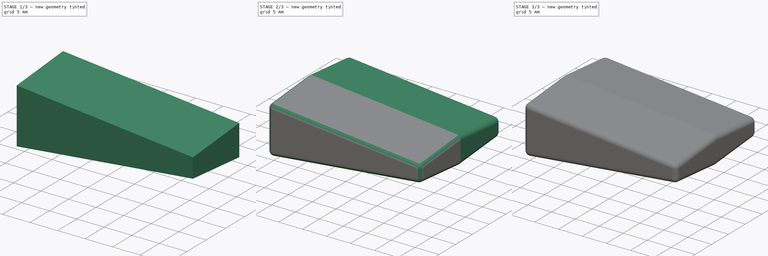
[diagram: build sequence overview — one tinted view per stage of 3, left to right]
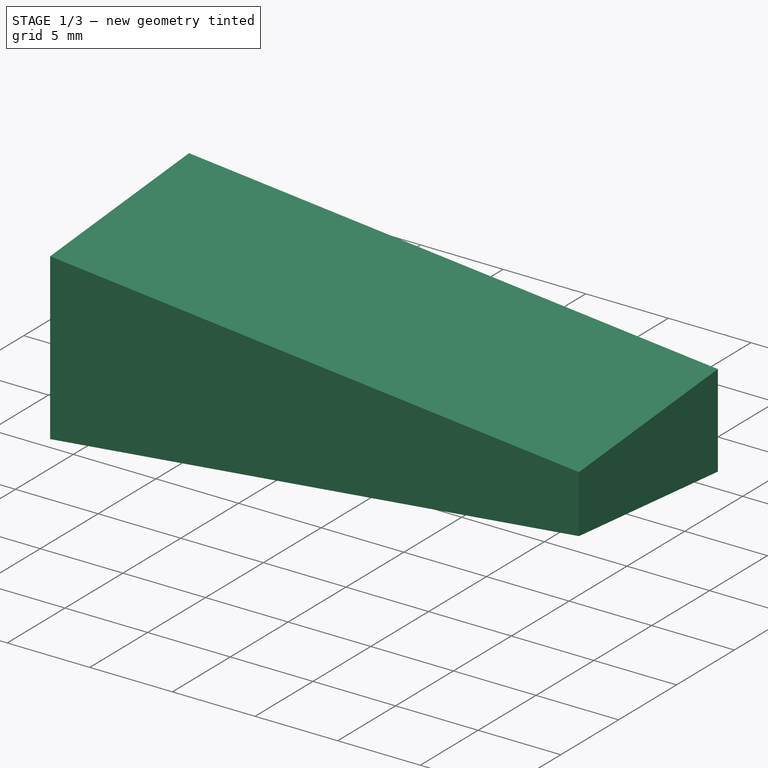
[diagram: stage 1 of 3 — iso view after this stage's code; geometry added in this stage tinted green]
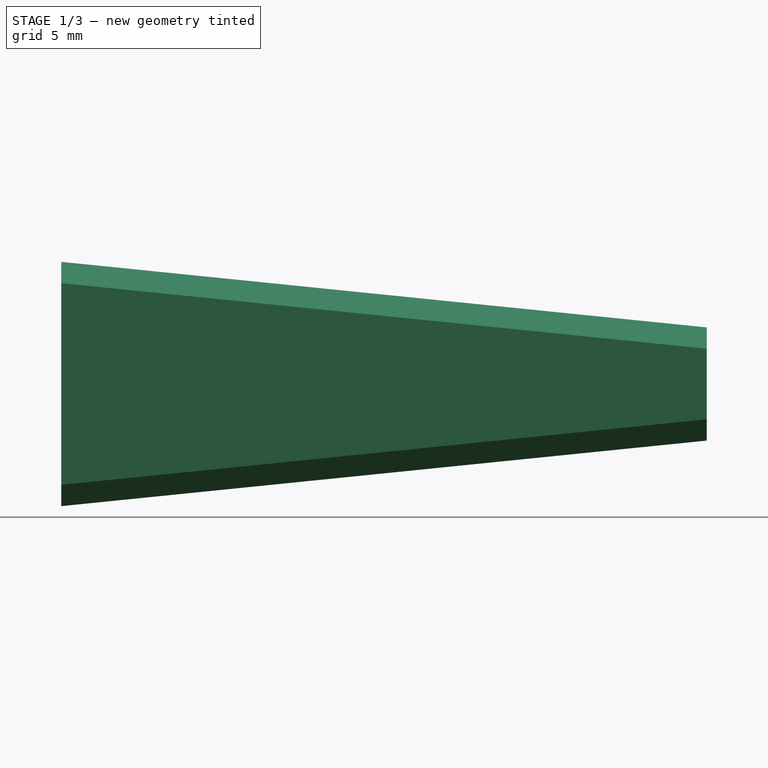
[diagram: stage 1 of 3 — front view after this stage's code; geometry added in this stage tinted green]
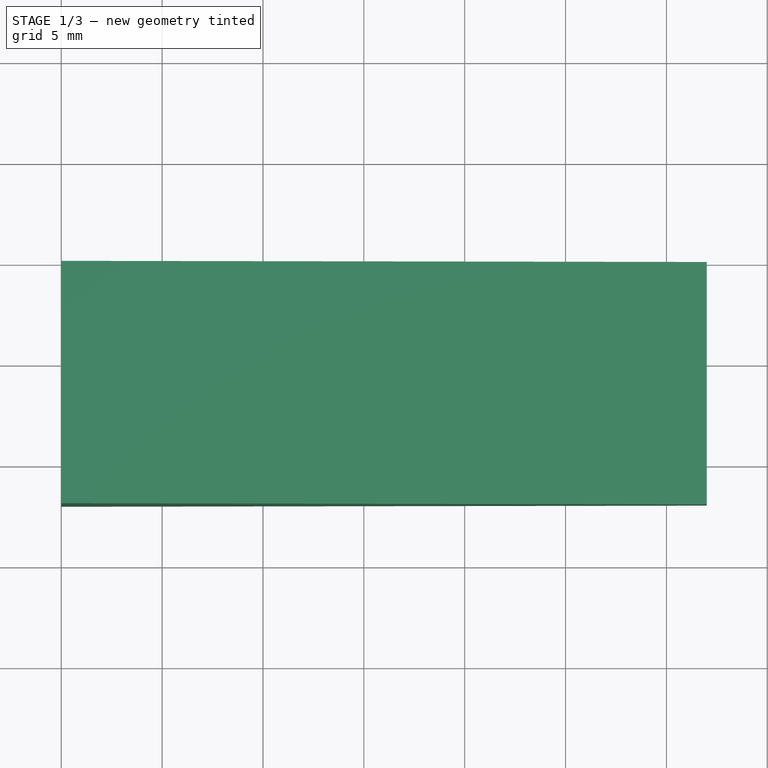
[diagram: stage 1 of 3 — top view after this stage's code; geometry added in this stage tinted green]
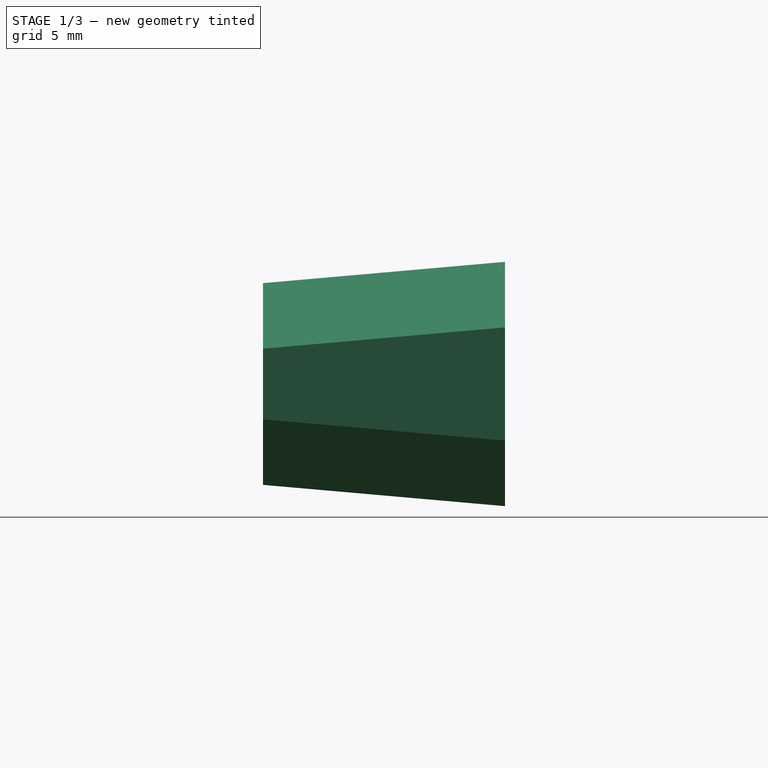
[diagram: stage 1 of 3 — right view after this stage's code; geometry added in this stage tinted green]
FCSTD DOCUMENT  (FreeCAD 0.16R6706 (Git))
Label: Flaps Handle
License: All rights reserved
LicenseURL: http://en.wikipedia.org/wiki/All_rights_reserved
objects: Sketcher::SketchObject×2, PartDesign::Pad×2, PartDesign::Draft×1, Part::Fillet×1, Part::Mirroring×1, Part::Compound×1, Part::Cut×1
note: 11 computed .brp shape members not serialized (recipe doc carries the construction recipe); baked Part::Feature solids carry a one-line shape summary decoded from their .brp

FEATURE [Sketcher::SketchObject] Sketch
  Placement = pos=(0,0,0) rot=(-1,0,0;4.71239rad)
  sketch-geometry (5):
    g0: LineSegment StartX=0 StartY=0 StartZ=0 EndX=0 EndY=5 EndZ=0
    g1: LineSegment StartX=0 StartY=0 StartZ=0 EndX=0 EndY=-5 EndZ=0
    g2: LineSegment StartX=0 StartY=5 StartZ=0 EndX=32 EndY=1.75 EndZ=0
    g3: LineSegment StartX=0 StartY=-5 StartZ=0 EndX=32 EndY=-1.75 EndZ=0
    g4: LineSegment StartX=32 StartY=1.75 StartZ=0 EndX=32 EndY=-1.75 EndZ=0
  constraints (14):
    c: Coincident(g0,g-1)
    c: Vertical(g0)
    c: Coincident(g1,g-1)
    c: Vertical(g1)
    c: Vertical(g4)
    c: Equal(g0,g1)
    c: DistanceX(g-1,g4) = 32
    c: DistanceY(g4,g4) = 3.5
    c: Symmetric(g4,g4,g-1)
    c: DistanceY(g3,g2) = 10
    c: Coincident(g1,g3)
    c: Coincident(g0,g2)
    c: Coincident(g2,g4)
    c: Coincident(g3,g4)
FEATURE [PartDesign::Pad] Pad
  Length = 12
  Length2 = 0
  Placement = pos=(0,0,0) rot=(-1,0,0;4.71239rad)
  Sketch = -> Sketch
  Type = 4
FEATURE [PartDesign::Draft] Draft
  Angle = 5
  Base = -> Pad [Face2,Face4]
  NeutralPlane = -> Pad [Face7]
  Placement = pos=(0,0,0) rot=(-1,0,0;4.71239rad)
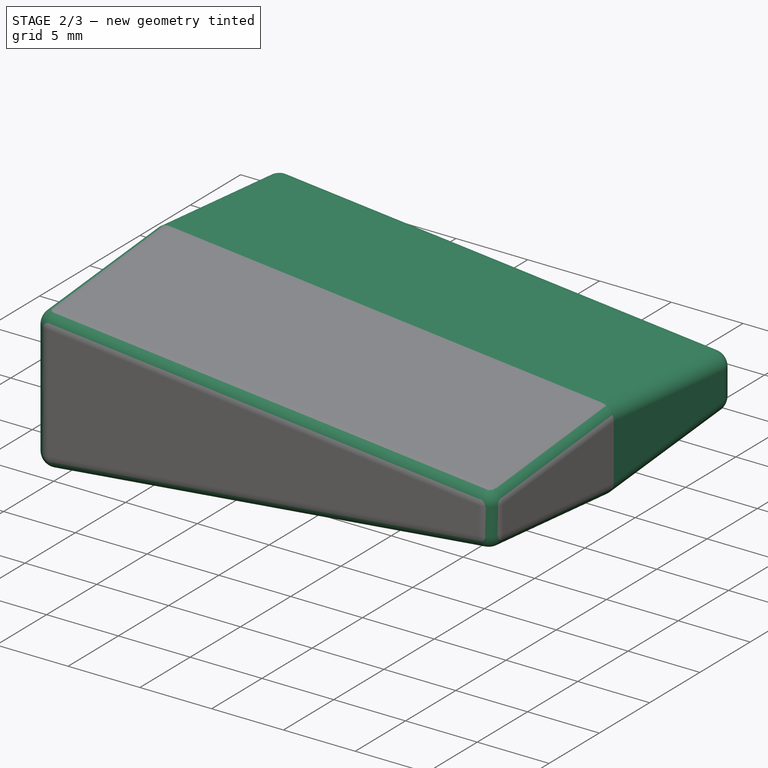
[diagram: stage 2 of 3 — iso view after this stage's code; geometry added in this stage tinted green]
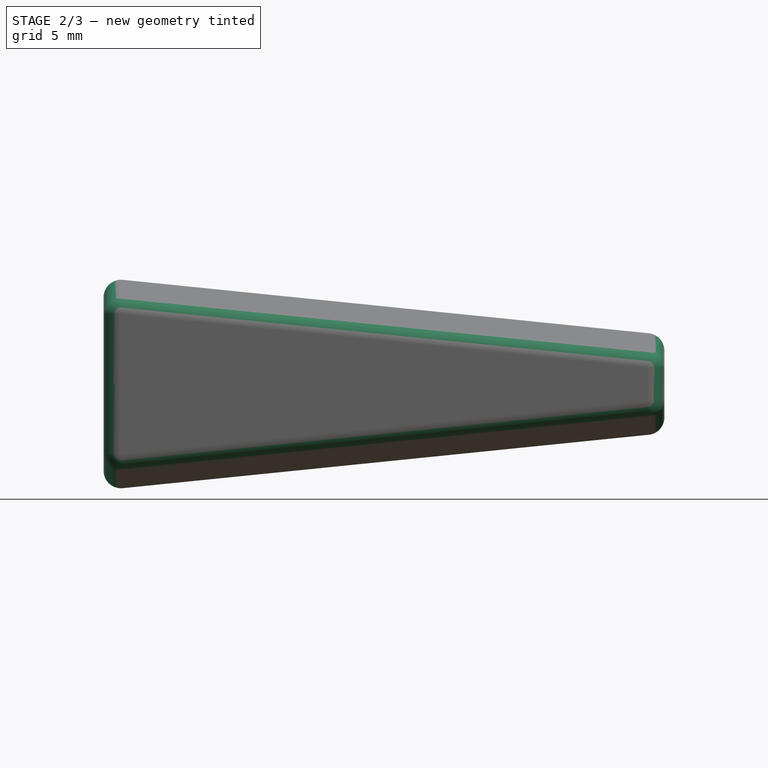
[diagram: stage 2 of 3 — front view after this stage's code; geometry added in this stage tinted green]
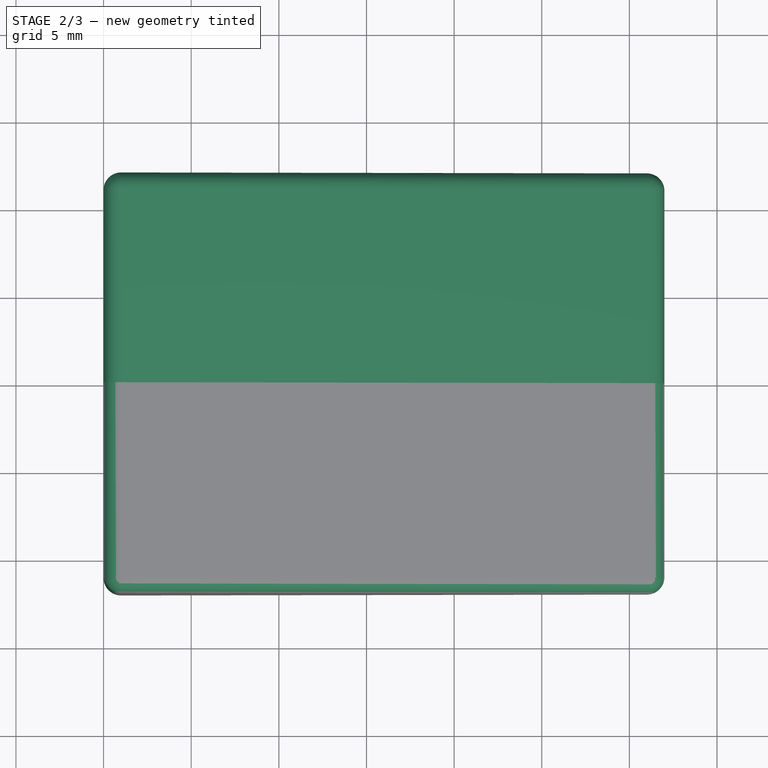
[diagram: stage 2 of 3 — top view after this stage's code; geometry added in this stage tinted green]
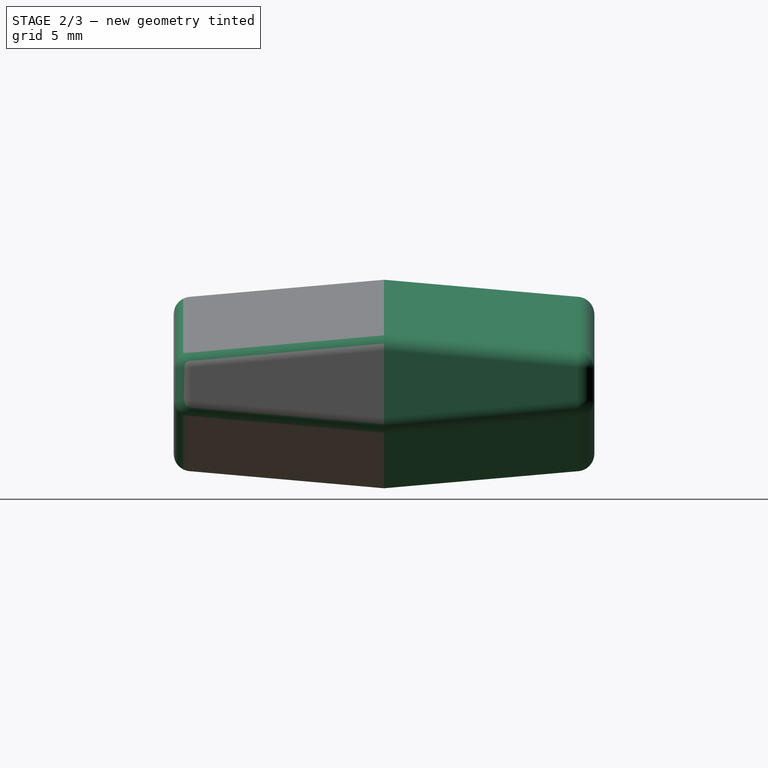
[diagram: stage 2 of 3 — right view after this stage's code; geometry added in this stage tinted green]
FEATURE [Part::Fillet] Fillet
  Base = -> Draft
  Edges = 9 edges r=1: [Edge2,Edge4,Edge5,Edge7,Edge8,Edge10,Edge11,Edge13,Edge15]
FEATURE [Part::Mirroring] mirror  label="Mirror of Draft"
  Base = (0,0,0)
  Normal = (0,1,0)
  Source = -> Fillet
FEATURE [Part::Compound] Compound
  Links = -> [Fillet,mirror]
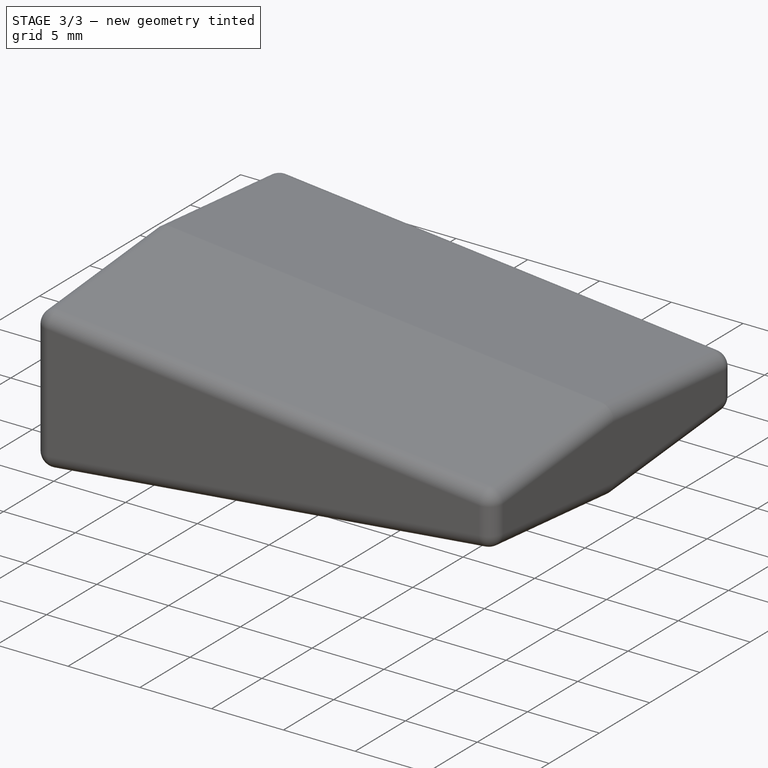
[diagram: stage 3 of 3 — iso view after this stage's code; geometry added in this stage tinted green]
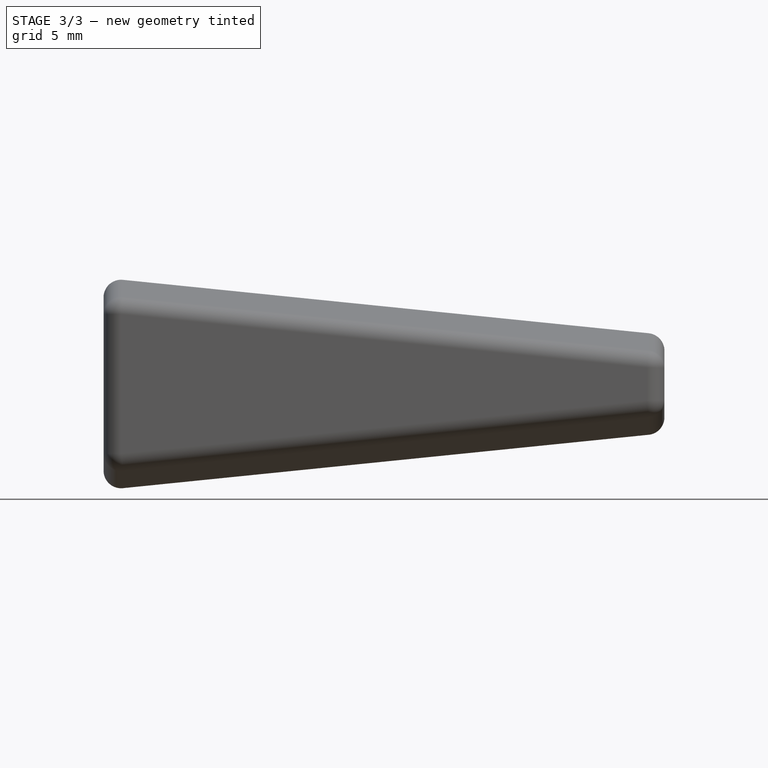
[diagram: stage 3 of 3 — front view after this stage's code; geometry added in this stage tinted green]
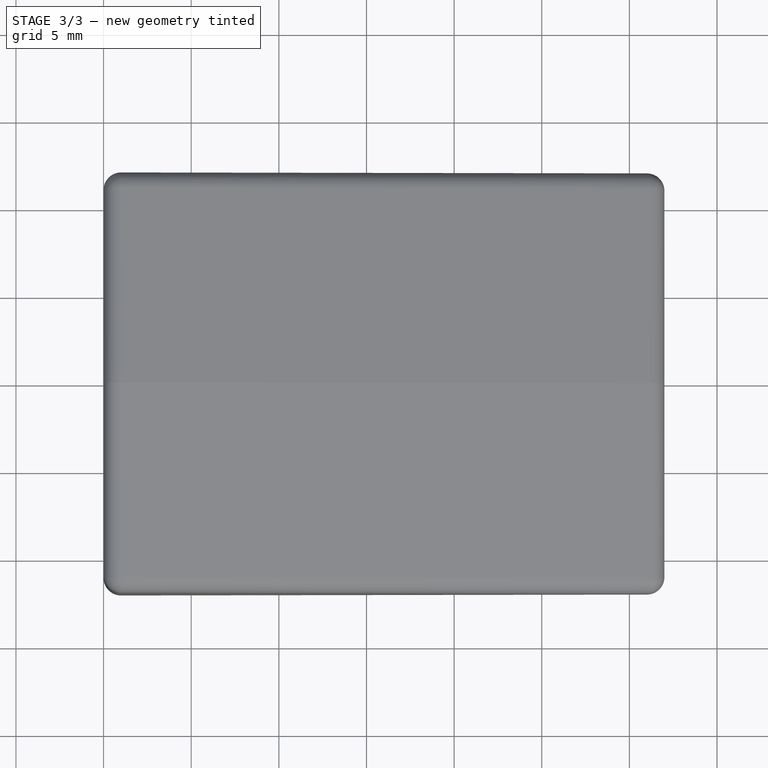
[diagram: stage 3 of 3 — top view after this stage's code; geometry added in this stage tinted green]
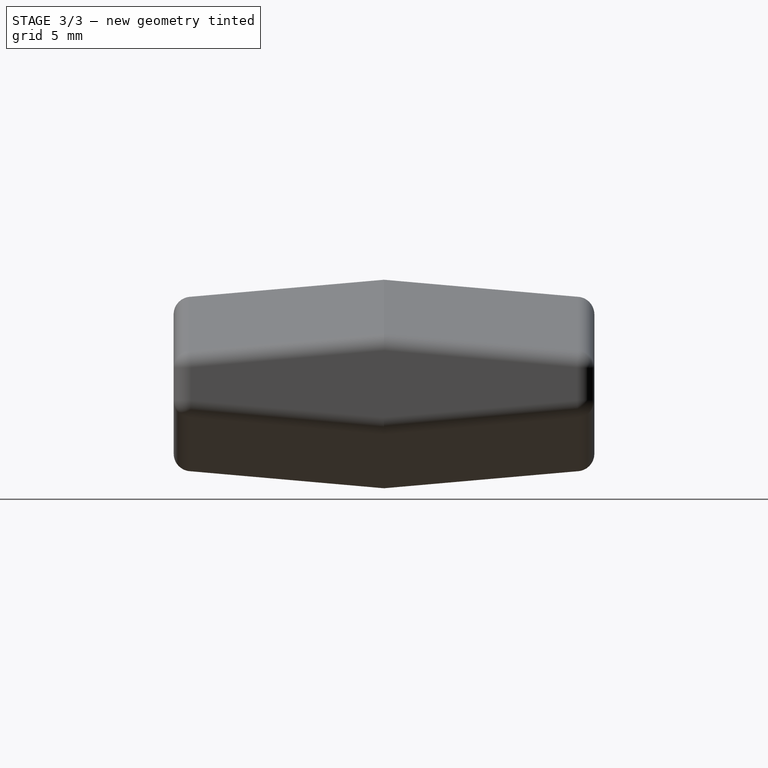
[diagram: stage 3 of 3 — right view after this stage's code; geometry added in this stage tinted green]
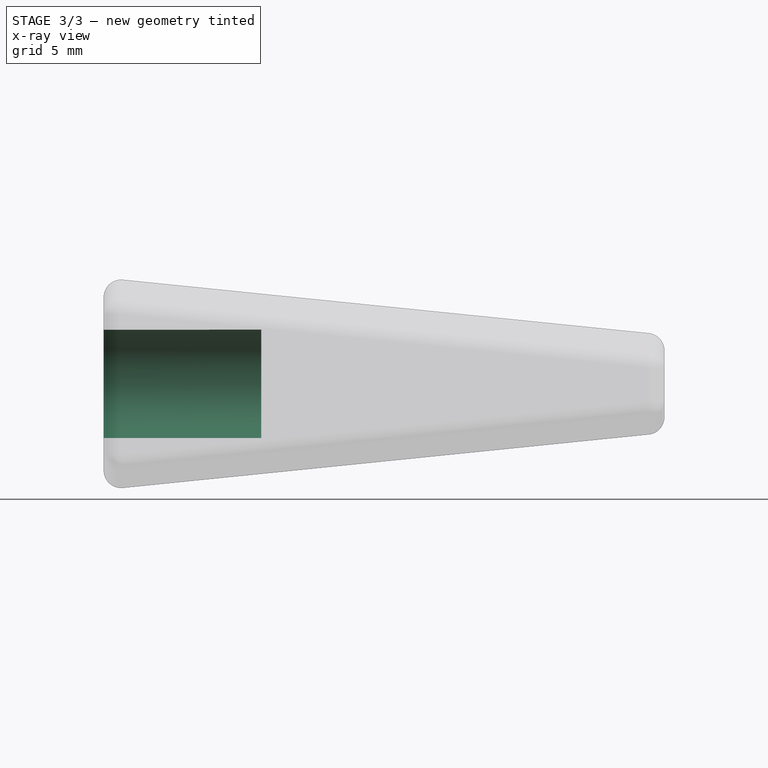
[diagram: stage 3 of 3 — x-ray composite at the front view; earlier geometry ghosted, this stage's added geometry solid]
FEATURE [Sketcher::SketchObject] Sketch001
  Placement = pos=(0,0,0) rot=(-0.57735,0.57735,0.57735;4.18879rad)
  sketch-geometry (1):
    g0: Circle CenterX=0 CenterY=0 CenterZ=0 NormalX=0 NormalY=0 NormalZ=1 Radius=3.1
  constraints (2):
    c: Coincident(g0,g-1)
    c: Radius(g0) = 3.1
FEATURE [PartDesign::Pad] Pad001
  Length = 9
  Length2 = 100
  Placement = pos=(0,0,0) rot=(-0.57735,0.57735,0.57735;4.18879rad)
  Reversed = true
  Sketch = -> Sketch001
  Type = 0
FEATURE [Part::Cut] Cut
  Base = -> Compound
  Tool = -> Pad001
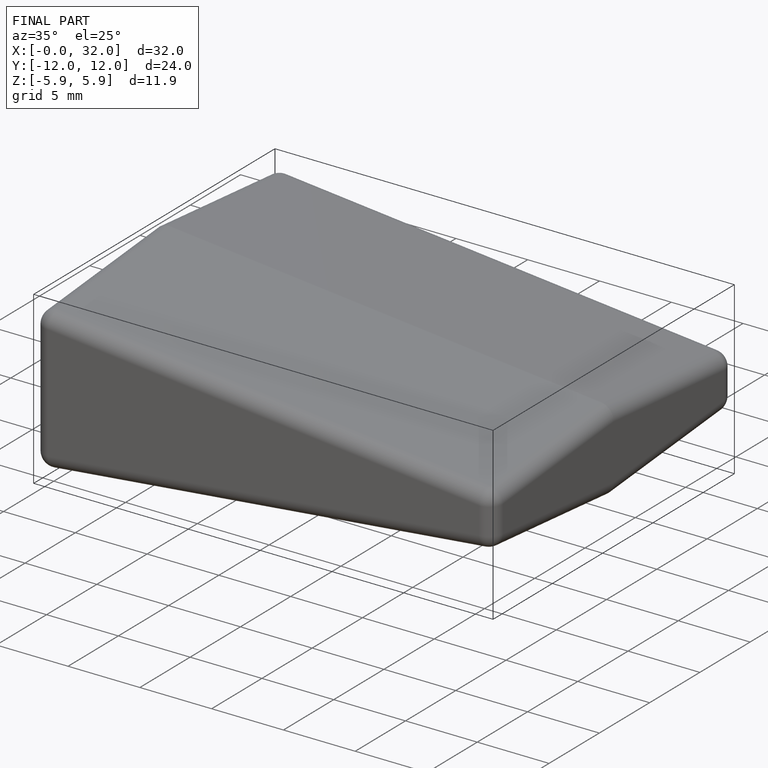
[diagram: finished part — iso view with bounding-box wireframe]
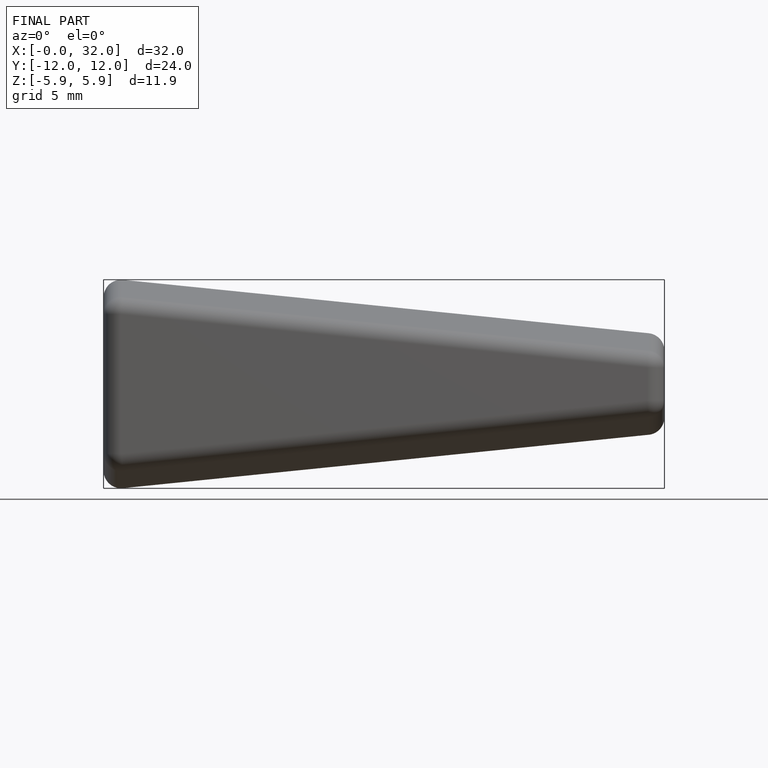
[diagram: finished part — front view with bounding-box wireframe]
